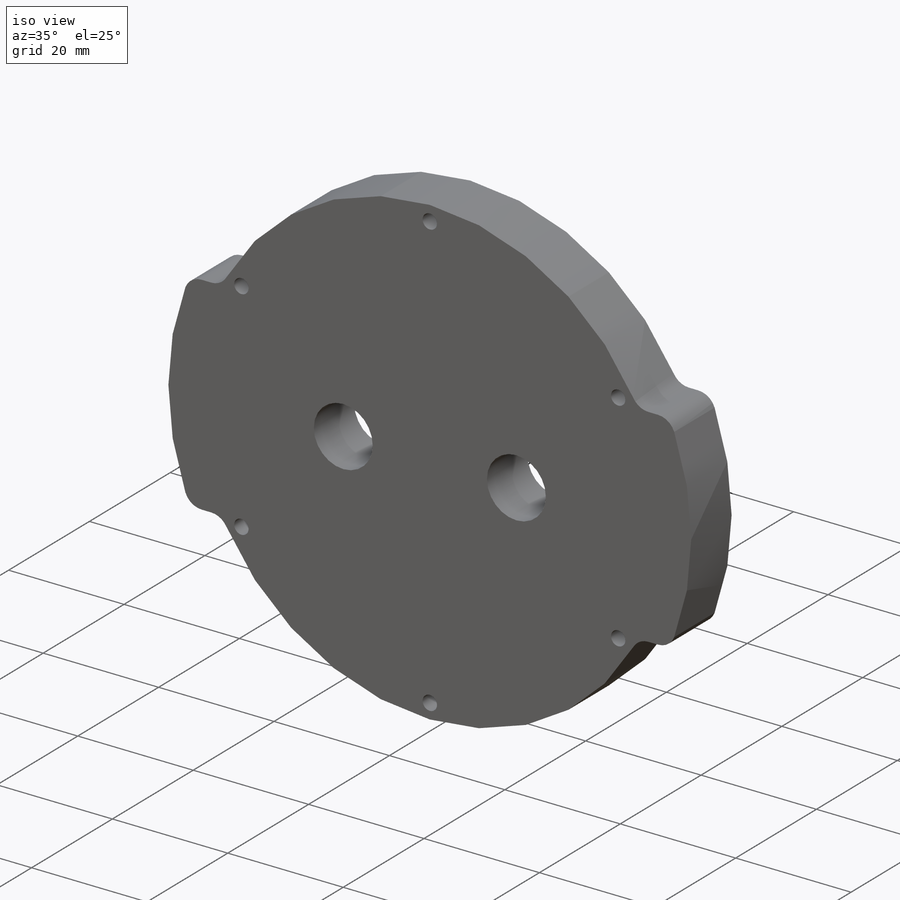
[diagram: iso view]
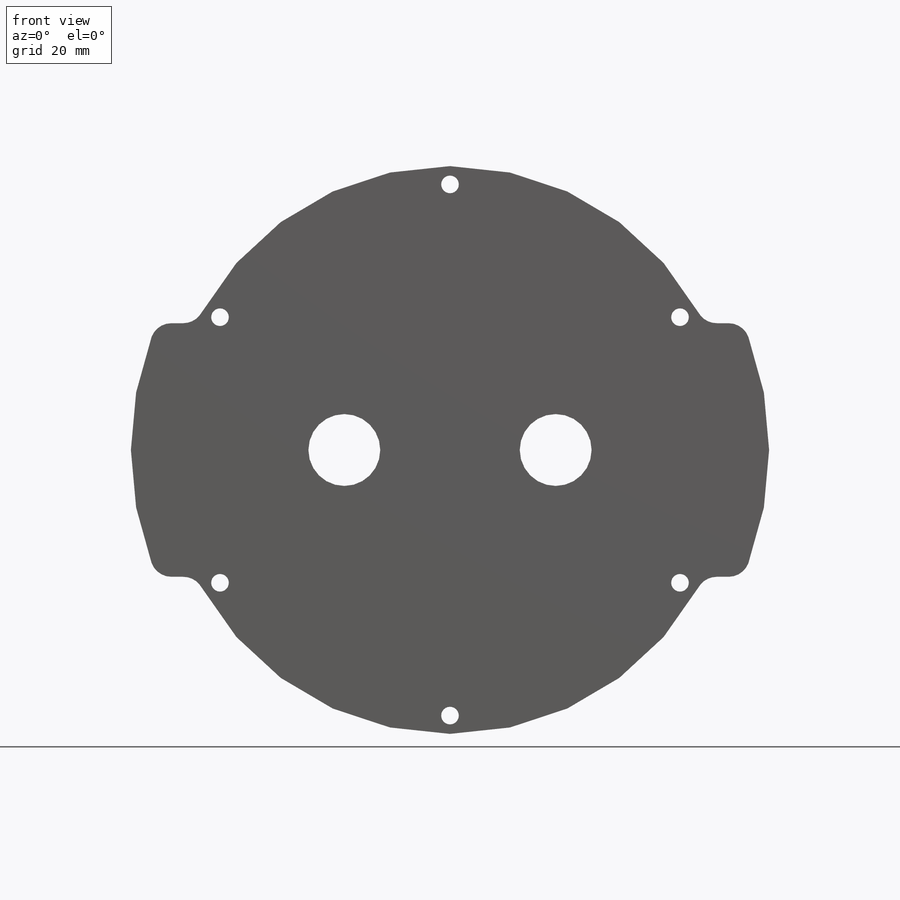
[diagram: front view]
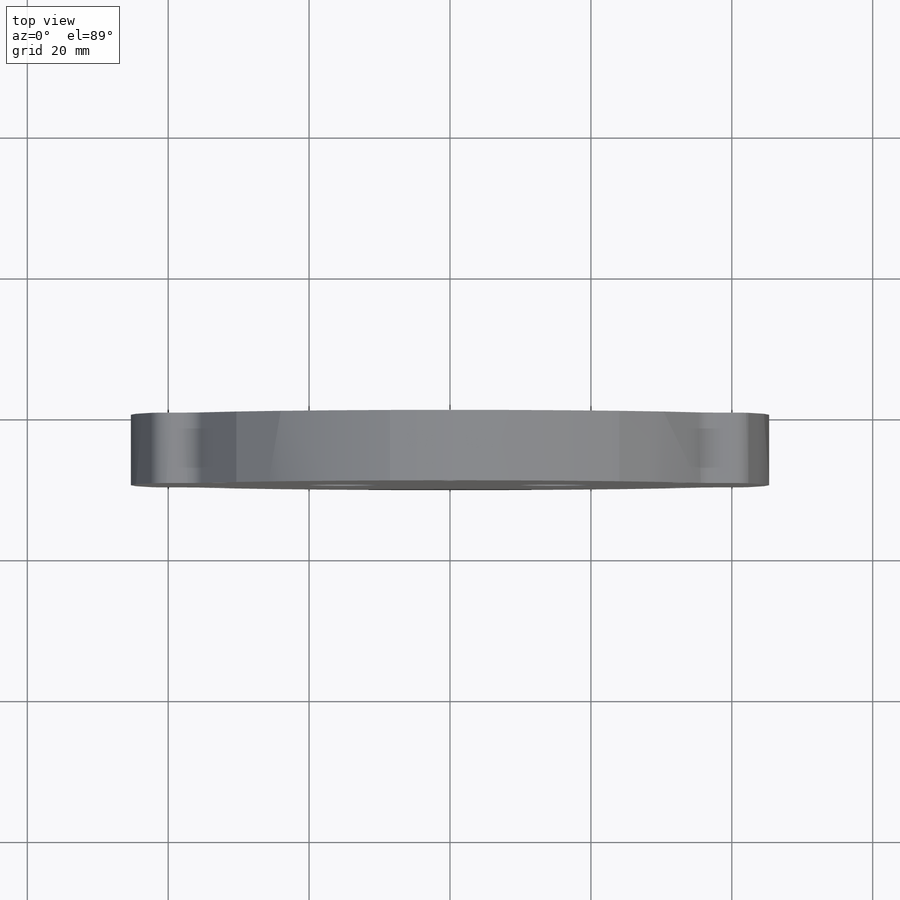
[diagram: top view]
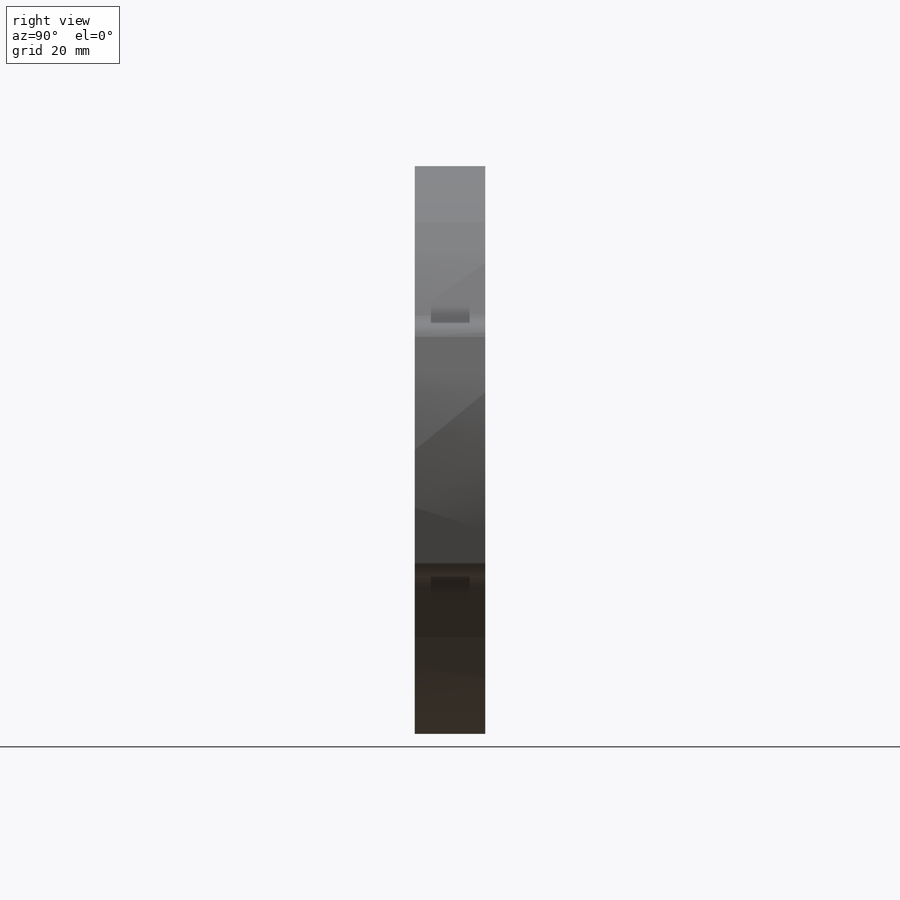
[diagram: right view]
SOLIDWORKS PART (.sldprt)
format: sldprt  version: not decoded by parser v0  size: 430,080 bytes
history: native  units: mm
features: sketch x4, plane x3, cut_extrude x3, material x1, extrude x1, fillet x1 (+10 scaffold rows collapsed)
feature tree (23):
  scaffold x10  (default folders/planes/origin — collapsed)
  material  "材质 <未指定>"
  plane  "前视"
  plane  "上视"
  plane  "右视"
  sketch  "草图1"  dims[D1=~44.328406mm]
  extrude  "凸台-拉伸1"  Depth=10mm
  sketch  "草图2"  dims[D3=~40.951076mm D1=18.0mm D2=18.0mm]
  cut_extrude  "切除-拉伸1"  [1 undecoded]
  fillet  "圆角1"  Radius=3mm
  sketch  "草图3"  dims[D1=2.5mm D2=37.7mm D3=6.0]
  cut_extrude  "切除-拉伸2"  [1 undecoded]
  sketch  "草图4"  dims[c1.D1=15.3mm c1.D2=10.2mm c2.D1=15.0mm c2.D2=2.0]
  cut_extrude  "切除-拉伸3"  [1 undecoded]
decode coverage: 6 of 9 modeling features carry decoded parameters
note: ~ marks probable driven/reference dimensions
note: 3 parameter values undecoded
summary: no parameter record found for 3 features
note: suppression state not decoded; provenance and decode notes live in map.json
